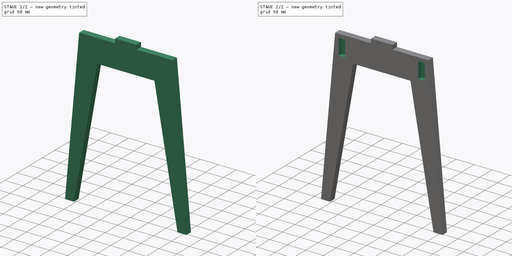
[diagram: build sequence overview — one tinted view per stage of 2, left to right]
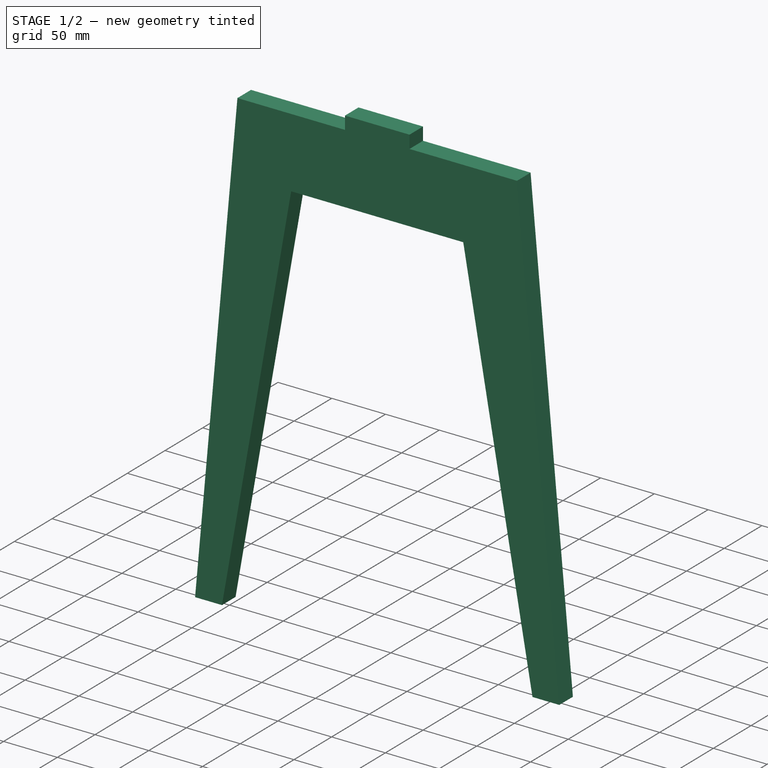
[diagram: stage 1 of 2 — iso view after this stage's code; geometry added in this stage tinted green]
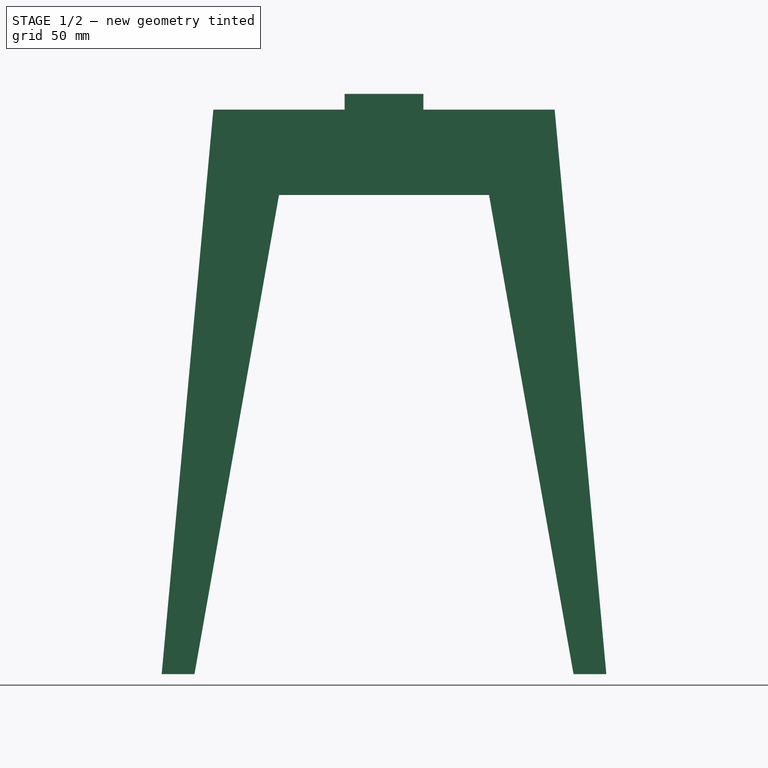
[diagram: stage 1 of 2 — front view after this stage's code; geometry added in this stage tinted green]
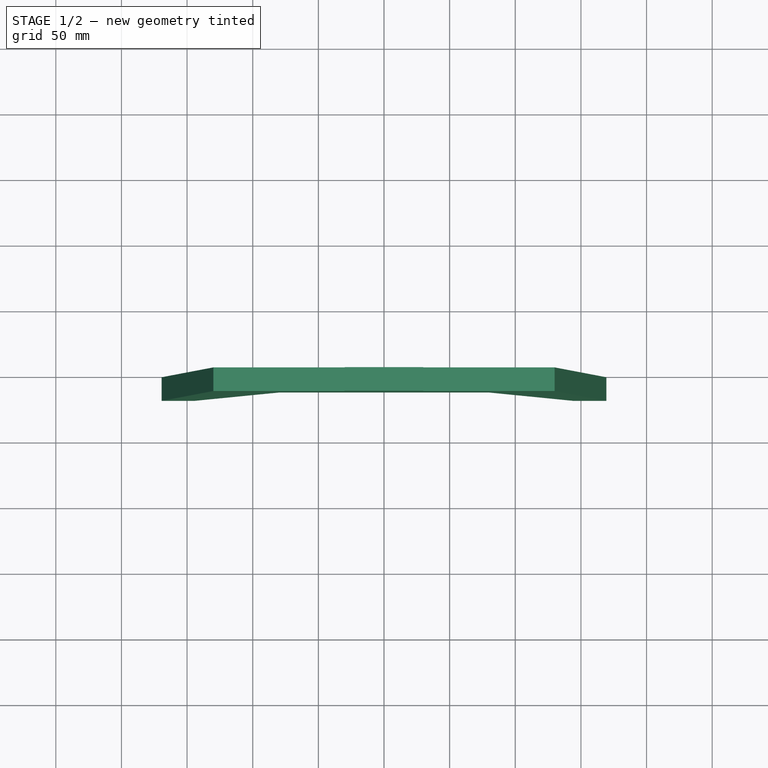
[diagram: stage 1 of 2 — top view after this stage's code; geometry added in this stage tinted green]
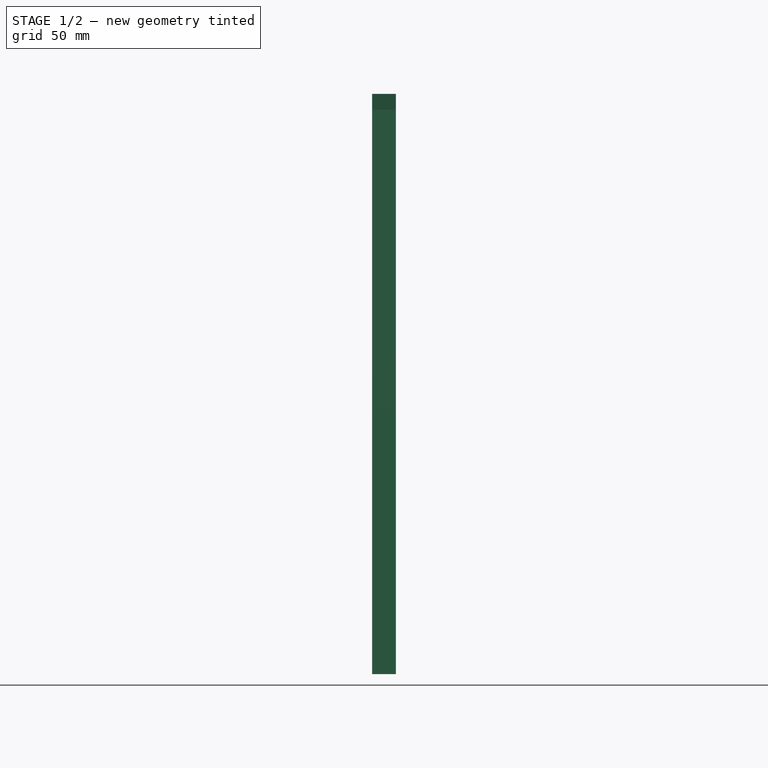
[diagram: stage 1 of 2 — right view after this stage's code; geometry added in this stage tinted green]
FCSTD DOCUMENT  (FreeCAD 0.15R4671 (Git))
Label: LegPart
License: All rights reserved
LicenseURL: http://en.wikipedia.org/wiki/All_rights_reserved
objects: Sketcher::SketchObject×2, PartDesign::Pad×1, PartDesign::Pocket×1
note: 6 computed .brp shape members not serialized (recipe doc carries the construction recipe); baked Part::Feature solids carry a one-line shape summary decoded from their .brp

FEATURE [Sketcher::SketchObject] Sketch
  Placement = pos=(0,0,0) rot=(1,0,0;1.5708rad)
  sketch-geometry (12):
    g0: LineSegment StartX=-169.359 StartY=0 StartZ=0 EndX=-130 EndY=430 EndZ=0
    g1: LineSegment StartX=-130 StartY=430 StartZ=0 EndX=-30 EndY=430 EndZ=0
    g2: LineSegment StartX=-30 StartY=430 StartZ=0 EndX=-30 EndY=442 EndZ=0
    g3: LineSegment StartX=-30 StartY=442 StartZ=0 EndX=30 EndY=442 EndZ=0
    g4: LineSegment StartX=30 StartY=442 StartZ=0 EndX=30 EndY=430 EndZ=0
    g5: LineSegment StartX=30 StartY=430 StartZ=0 EndX=130 EndY=430 EndZ=0
    g6: LineSegment StartX=130 StartY=430 StartZ=0 EndX=169.359 EndY=0 EndZ=0
    g7: LineSegment StartX=169.359 StartY=0 StartZ=0 EndX=144.359 EndY=0 EndZ=0
    g8: LineSegment StartX=144.359 StartY=0 StartZ=0 EndX=80 EndY=365 EndZ=0
    g9: LineSegment StartX=80 StartY=365 StartZ=0 EndX=-80 EndY=365 EndZ=0
    g10: LineSegment StartX=-80 StartY=365 StartZ=0 EndX=-144.359 EndY=0 EndZ=0
    g11: LineSegment StartX=-144.359 StartY=0 StartZ=0 EndX=-169.359 EndY=0 EndZ=0
  constraints (37):
    c: Coincident(g0,g1)
    c: Coincident(g1,g2)
    c: Coincident(g2,g3)
    c: Coincident(g3,g4)
    c: Coincident(g4,g5)
    c: Coincident(g5,g6)
    c: Coincident(g6,g7)
    c: Coincident(g8,g9)
    c: Coincident(g9,g10)
    c: Coincident(g10,g11)
    c: Coincident(g11,g0)
    c: Horizontal(g11)
    c: Horizontal(g7)
    c: Horizontal(g5)
    c: Horizontal(g1)
    c: Horizontal(g9)
    c: Horizontal(g3)
    c: Equal(g4,g2)
    c: Distance(g3) = 60
    c: Vertical(g2)
    c: Vertical(g4)
    c: Equal(g1,g5)
    c: Symmetric(g0,g5,g-2)
    c: Symmetric(g9,g8,g-2)
    c: Coincident(g7,g8)
    c: Symmetric(g10,g7,g-2)
    c: Symmetric(g0,g6,g-2)
    c: Symmetric(g0,g5,g-2)
    c: DistanceY(g9,g1) = 65
    c: Angle(g10,g9) = 1.74533
    c: DistanceY(g5,g6) = -430  'Height'
    c: DistanceY(g-1,g10) = 0
    c: DistanceX(g0,g5) = 260  'Length'
    c: DistanceX(g10,g0) = -25
    c: Symmetric(g0,g5,g-2)
    c: DistanceX(g9,g0) = -50
    c: DistanceY(g2,g1) = -12
FEATURE [PartDesign::Pad] Pad
  Length = 18
  Length2 = 100
  Placement = pos=(0,0,0) rot=(1,0,0;1.5708rad)
  Sketch = -> Sketch
  Type = 0
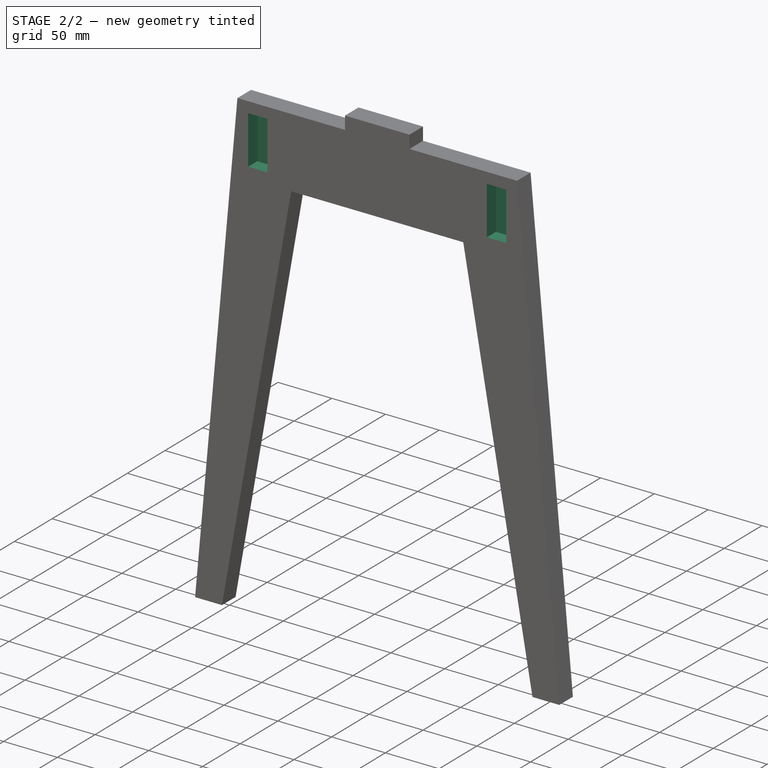
[diagram: stage 2 of 2 — iso view after this stage's code; geometry added in this stage tinted green]
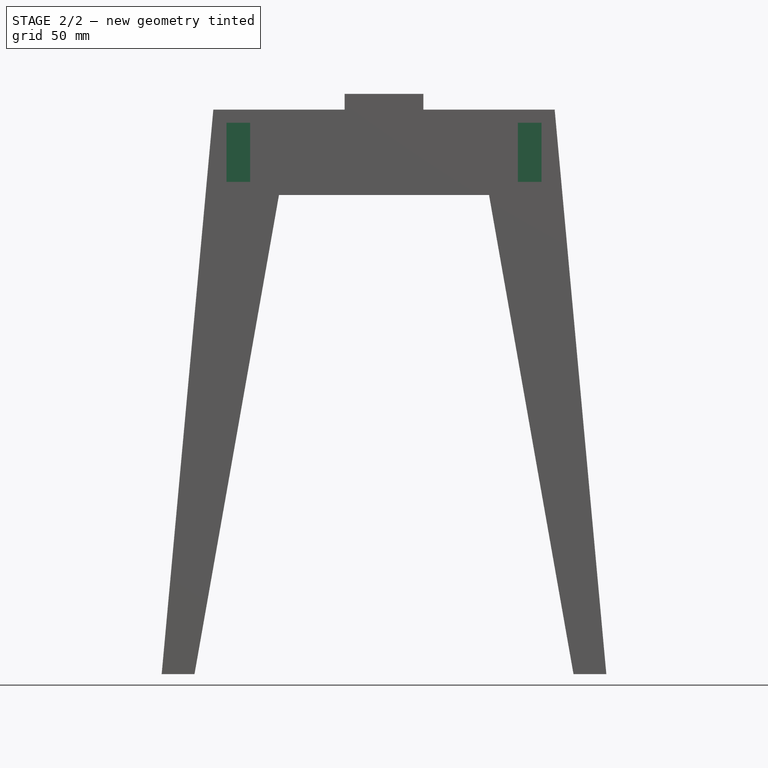
[diagram: stage 2 of 2 — front view after this stage's code; geometry added in this stage tinted green]
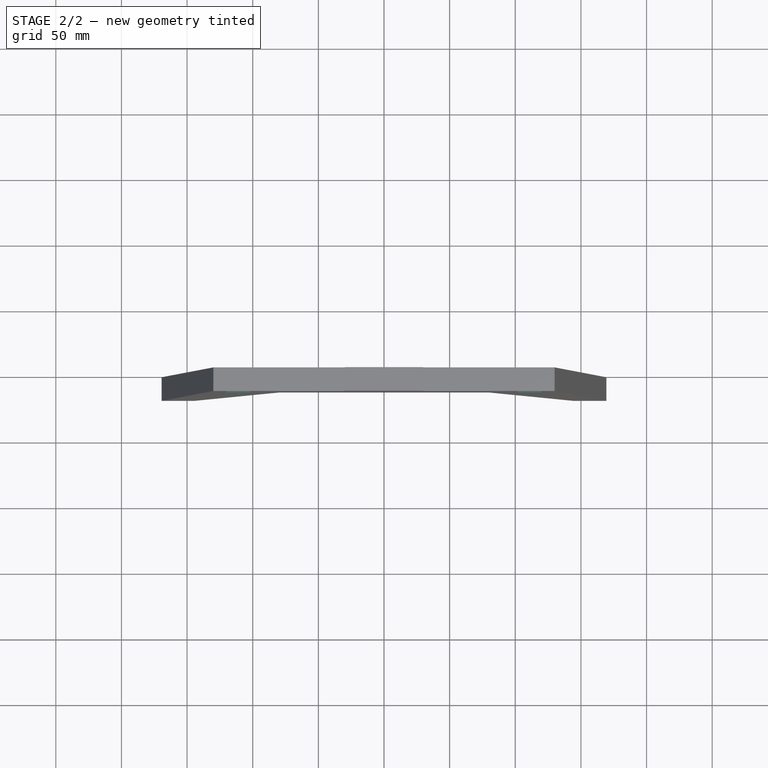
[diagram: stage 2 of 2 — top view after this stage's code; geometry added in this stage tinted green]
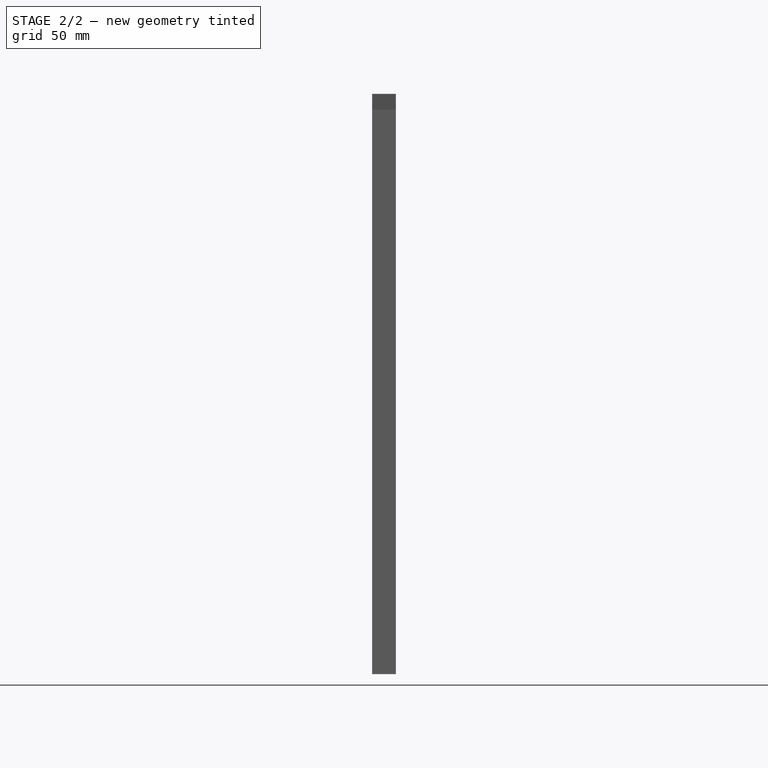
[diagram: stage 2 of 2 — right view after this stage's code; geometry added in this stage tinted green]
FEATURE [Sketcher::SketchObject] Sketch001
  ExternalGeometry = -> [Pad]
  Placement = pos=(0,-18,0) rot=(1,0,0;1.5708rad)
  Support = -> Pad [Face14]
  sketch-geometry (8):
    g0: LineSegment StartX=-102 StartY=420 StartZ=0 EndX=-120 EndY=420 EndZ=0
    g1: LineSegment StartX=-120 StartY=420 StartZ=0 EndX=-120 EndY=375 EndZ=0
    g2: LineSegment StartX=-120 StartY=375 StartZ=0 EndX=-102 EndY=375 EndZ=0
    g3: LineSegment StartX=-102 StartY=375 StartZ=0 EndX=-102 EndY=420 EndZ=0
    g4: LineSegment StartX=102 StartY=420 StartZ=0 EndX=120 EndY=420 EndZ=0
    g5: LineSegment StartX=120 StartY=420 StartZ=0 EndX=120 EndY=375 EndZ=0
    g6: LineSegment StartX=120 StartY=375 StartZ=0 EndX=102 EndY=375 EndZ=0
    g7: LineSegment StartX=102 StartY=375 StartZ=0 EndX=102 EndY=420 EndZ=0
  constraints (23):
    c: Coincident(g1,g2)
    c: Coincident(g2,g3)
    c: Coincident(g3,g0)
    c: Horizontal(g0)
    c: Horizontal(g2)
    c: Vertical(g1)
    c: Vertical(g3)
    c: Distance(g1) = 45
    c: DistanceY(g0,g-3) = 10
    c: Coincident(g4,g5)
    c: Coincident(g5,g6)
    c: Coincident(g6,g7)
    c: Coincident(g7,g4)
    c: Horizontal(g4)
    c: Horizontal(g6)
    c: Vertical(g5)
    c: Vertical(g7)
    c: Equal(g6,g2)
    c: Coincident(g1,g0)
    c: DistanceX(g0,g-3) = -10
    c: Symmetric(g0,g4,g-2)
    c: DistanceX(g-3,g0) = 28
    c: Symmetric(g2,g6,g-2)
FEATURE [PartDesign::Pocket] Pocket  label="Last"
  Length = 12
  Placement = pos=(0,0,0) rot=(1,0,0;1.5708rad)
  Sketch = -> Sketch001
  Type = 0
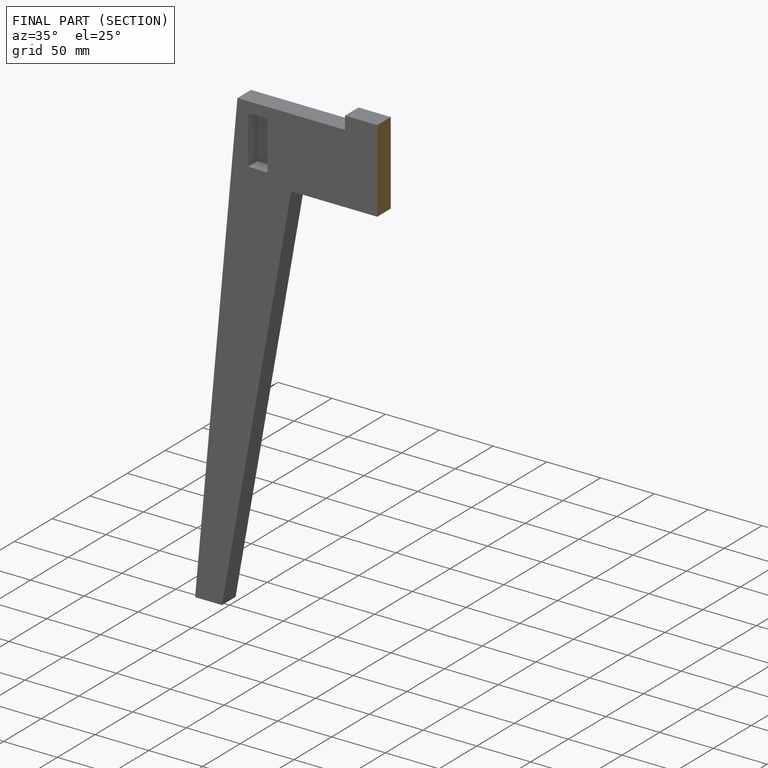
[diagram: finished part — half-section view (interior)]
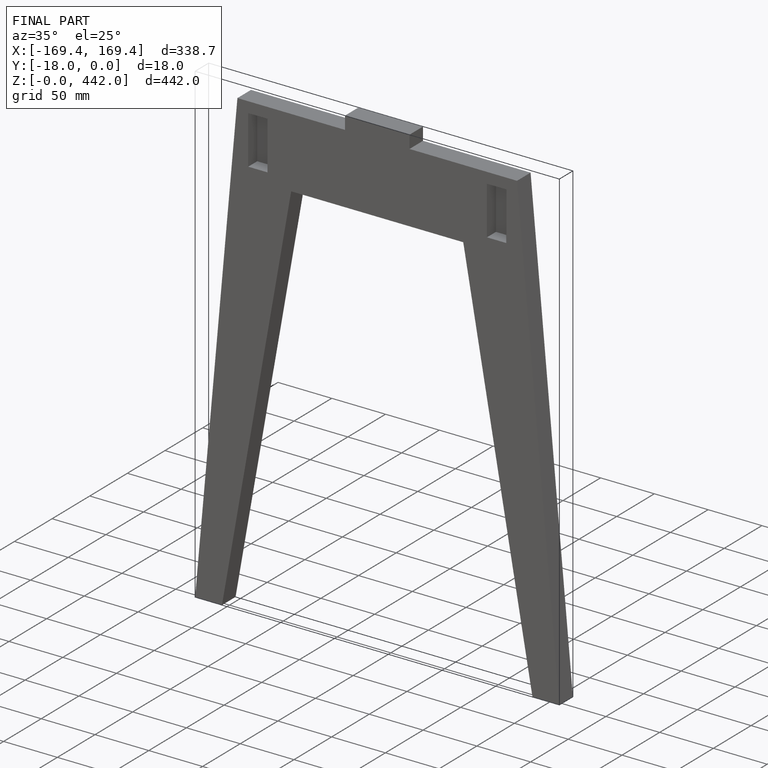
[diagram: finished part — iso view with bounding-box wireframe]
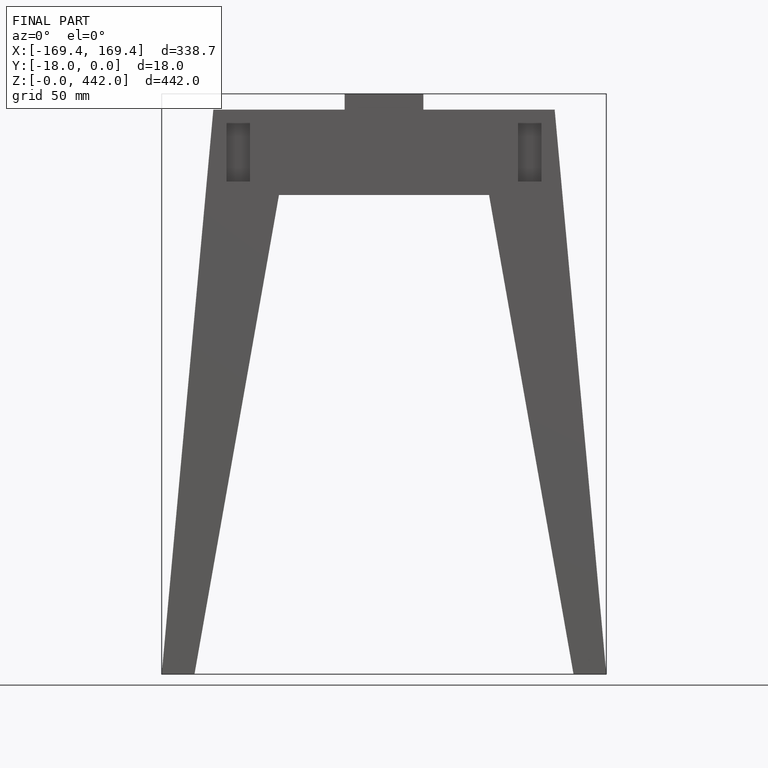
[diagram: finished part — front view with bounding-box wireframe]
